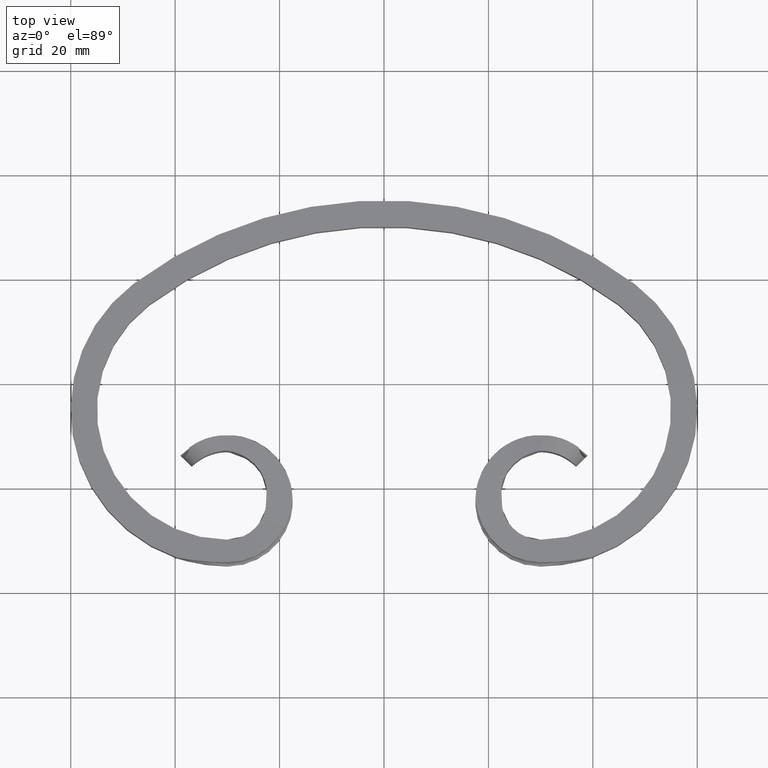
[diagram: clean part render]
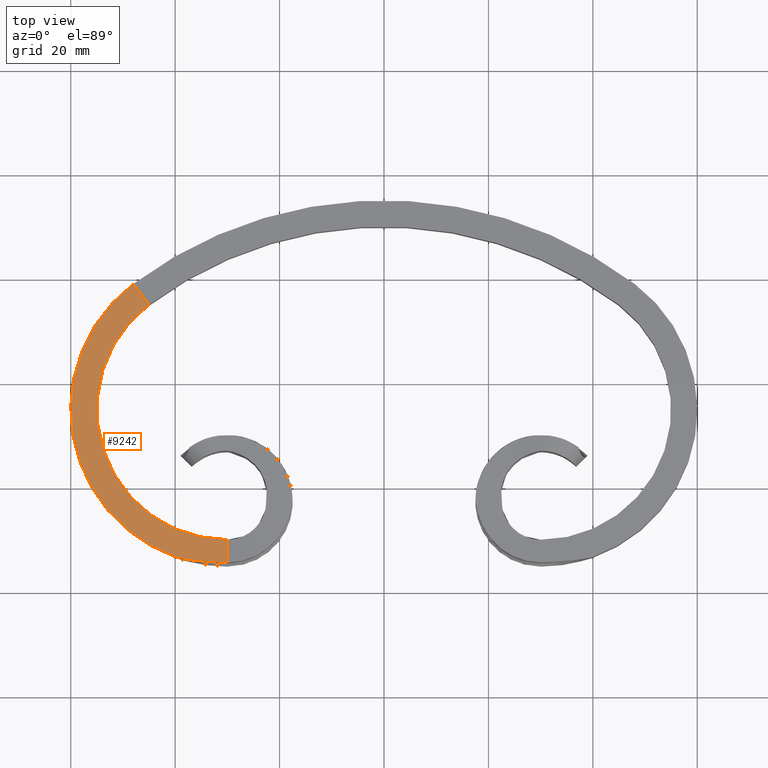
[diagram: same view with one face highlighted and labeled with its STEP entity id]
A machine part, top view. The second image highlights one B-rep face of the part: STEP entity #9242.
In plain terms, the highlighted planar face has unit normal (-0, 0, -1).
Its self-contained STEP definition (entity closure, byte-faithful):
#382 = CARTESIAN_POINT ( 'NONE',  ( -29.99999999999999289, -5.000000000000006217, 5.999999999999999112 ) ) ;
#847 = EDGE_CURVE ( 'NONE', #8219, #2121, #3375, .T. ) ;
#1151 = CIRCLE ( 'NONE', #5917, 25.00000000000001421 ) ;
#1388 = CIRCLE ( 'NONE', #2527, 49.31406857696329382 ) ;
#1868 = CARTESIAN_POINT ( 'NONE',  ( -29.99999999999999289, -5.000000000000006217, 6.000000000000000000 ) ) ;
#1958 = DIRECTION ( 'NONE',  ( 0.5999999999999998668, -0.8000000000000000444, 1.734723475976806601E-16 ) ) ;
#1966 = ORIENTED_EDGE ( 'NONE', *, *, #8987, .T. ) ;
#2121 = VERTEX_POINT ( 'NONE', #14606 ) ;
#2162 = LINE ( 'NONE', #8413, #9925 ) ;
#2325 = CARTESIAN_POINT ( 'NONE',  ( -30.03137999180284368, -34.31420178705655388, 5.999999999999999112 ) ) ;
#2527 = AXIS2_PLACEMENT_3D ( 'NONE', #10272, #16411, #8819 ) ;
#2572 = EDGE_CURVE ( 'NONE', #16056, #14982, #1388, .T. ) ;
#2749 = DIRECTION ( 'NONE',  ( -1.000000000000000000, 0.000000000000000000, 0.000000000000000000 ) ) ;
#3140 = DIRECTION ( 'NONE',  ( -0.5999999999999999778, 0.7999999999999999334, 0.000000000000000000 ) ) ;
#3375 = LINE ( 'NONE', #14823, #5160 ) ;
#3698 = CARTESIAN_POINT ( 'NONE',  ( -30.04711231172892738, -34.31423004579989566, 6.000000000000002665 ) ) ;
#4366 = DIRECTION ( 'NONE',  ( 0.000000000000000000, 0.000000000000000000, 1.000000000000000000 ) ) ;
#4509 = AXIS2_PLACEMENT_3D ( 'NONE', #382, #4366, #11973 ) ;
#4726 = EDGE_CURVE ( 'NONE', #8219, #16056, #14718, .T. ) ;
#4845 = CARTESIAN_POINT ( 'NONE',  ( -39.68713121014017986, -33.39294787297594524, 5.999999999999993783 ) ) ;
#5160 = VECTOR ( 'NONE', #6434, 1000.000000000000000 ) ;
#5544 = ORIENTED_EDGE ( 'NONE', *, *, #4726, .F. ) ;
#5917 = AXIS2_PLACEMENT_3D ( 'NONE', #1868, #10761, #3140 ) ;
#6166 = CARTESIAN_POINT ( 'NONE',  ( -30.04711231172893093, -34.31423004579989566, 6.000000000000002665 ) ) ;
#6434 = DIRECTION ( 'NONE',  ( 9.796017456287162881E-16, 1.000000000000000000, 1.734723475976806848E-16 ) ) ;
#6565 = VERTEX_POINT ( 'NONE', #8225 ) ;
#6928 = CIRCLE ( 'NONE', #4509, 30.00000000000001776 ) ;
#8219 = VERTEX_POINT ( 'NONE', #11378 ) ;
#8225 = CARTESIAN_POINT ( 'NONE',  ( -45.00000000000000000, 15.00000000000000711, 6.000000000000000000 ) ) ;
#8413 = CARTESIAN_POINT ( 'NONE',  ( -48.00000000000000000, 19.00000000000002487, 5.999999999999999112 ) ) ;
#8819 = DIRECTION ( 'NONE',  ( -1.000000000000000000, 0.000000000000000000, 0.000000000000000000 ) ) ;
#8975 = FACE_OUTER_BOUND ( 'NONE', #15455, .T. ) ;
#8987 = EDGE_CURVE ( 'NONE', #13965, #14982, #6928, .T. ) ;
#9114 = ORIENTED_EDGE ( 'NONE', *, *, #11010, .F. ) ;
#9242 = ADVANCED_FACE ( 'NONE', ( #8975 ), #12882, .F. ) ;
#9515 = ORIENTED_EDGE ( 'NONE', *, *, #847, .T. ) ;
#9925 = VECTOR ( 'NONE', #1958, 1000.000000000000114 ) ;
#10272 = CARTESIAN_POINT ( 'NONE',  ( -30.19829498754699770, 14.99960678943303982, 6.000000000000002665 ) ) ;
#10761 = DIRECTION ( 'NONE',  ( 0.000000000000000000, 0.000000000000000000, 1.000000000000000000 ) ) ;
#11010 = EDGE_CURVE ( 'NONE', #6565, #2121, #1151, .T. ) ;
#11378 = CARTESIAN_POINT ( 'NONE',  ( -30.00000000000002132, -34.31406559033229087, 6.000000000000000000 ) ) ;
#11383 = ORIENTED_EDGE ( 'NONE', *, *, #2572, .F. ) ;
#11693 = CARTESIAN_POINT ( 'NONE',  ( -48.00000000000000000, 19.00000000000001066, 6.000000000000000000 ) ) ;
#11719 = EDGE_CURVE ( 'NONE', #13965, #6565, #2162, .T. ) ;
#11973 = DIRECTION ( 'NONE',  ( -0.5999999999999999778, 0.8000000000000000444, 0.000000000000000000 ) ) ;
#12882 = PLANE ( 'NONE',  #13003 ) ;
#12985 = DIRECTION ( 'NONE',  ( -0.000000000000000000, 0.000000000000000000, -1.000000000000000000 ) ) ;
#13003 = AXIS2_PLACEMENT_3D ( 'NONE', #11693, #12985, #2749 ) ;
#13225 = ORIENTED_EDGE ( 'NONE', *, *, #11719, .F. ) ;
#13958 = CARTESIAN_POINT ( 'NONE',  ( -30.00000000000002132, -34.31406559033229087, 6.000000000000000000 ) ) ;
#13965 = VERTEX_POINT ( 'NONE', #15260 ) ;
#14606 = CARTESIAN_POINT ( 'NONE',  ( -30.00000000000001421, -30.00000000000002132, 6.000000000000000000 ) ) ;
#14718 =( BOUNDED_CURVE ( )  B_SPLINE_CURVE ( 3, ( #13958, #15240, #2325, #3698 ),
 .UNSPECIFIED., .F., .T. ) 
 B_SPLINE_CURVE_WITH_KNOTS ( ( 4, 4 ),
 ( 6.938893903907228378E-18, 4.711259876130408000E-05 ),
 .UNSPECIFIED. ) 
 CURVE ( )  GEOMETRIC_REPRESENTATION_ITEM ( )  RATIONAL_B_SPLINE_CURVE ( ( 0.5217803813051999917, 0.5217803813051999917, 0.5217803813051999917, 0.5217803813051999917 ) ) 
 REPRESENTATION_ITEM ( '' )  );
#14823 = CARTESIAN_POINT ( 'NONE',  ( -30.00000000000002132, -35.00000000000001421, 5.999999999999999112 ) ) ;
#14982 = VERTEX_POINT ( 'NONE', #4845 ) ;
#15240 = CARTESIAN_POINT ( 'NONE',  ( -30.01567626226326979, -34.31414699491300979, 5.999999999999999112 ) ) ;
#15260 = CARTESIAN_POINT ( 'NONE',  ( -47.99999999999998579, 19.00000000000002487, 5.999999999999999112 ) ) ;
#15455 = EDGE_LOOP ( 'NONE', ( #5544, #9515, #9114, #13225, #1966, #11383 ) ) ;
#16056 = VERTEX_POINT ( 'NONE', #6166 ) ;
#16411 = DIRECTION ( 'NONE',  ( -0.000000000000000000, 0.000000000000000000, -1.000000000000000000 ) ) ;